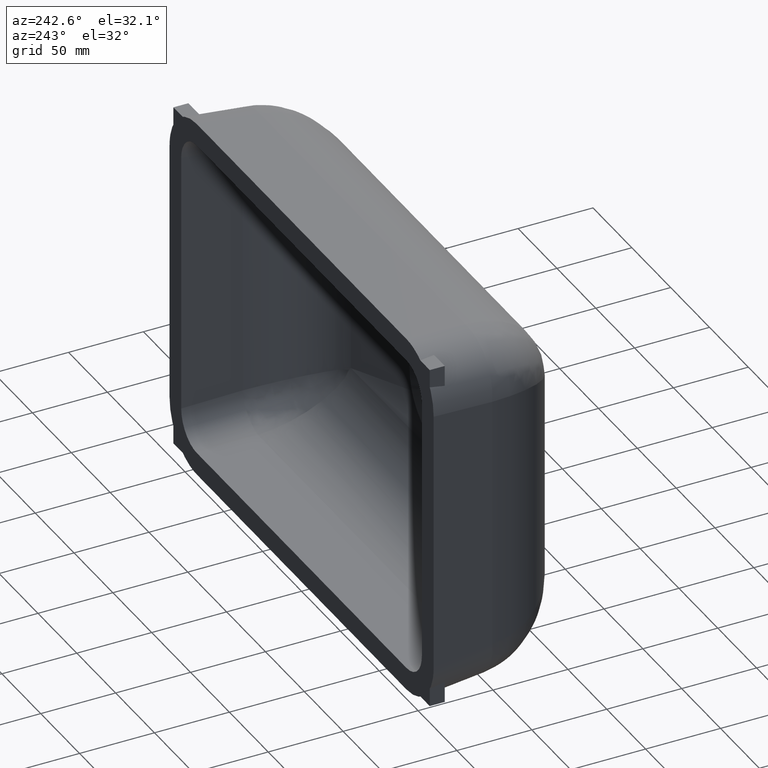
[diagram: clean part render]
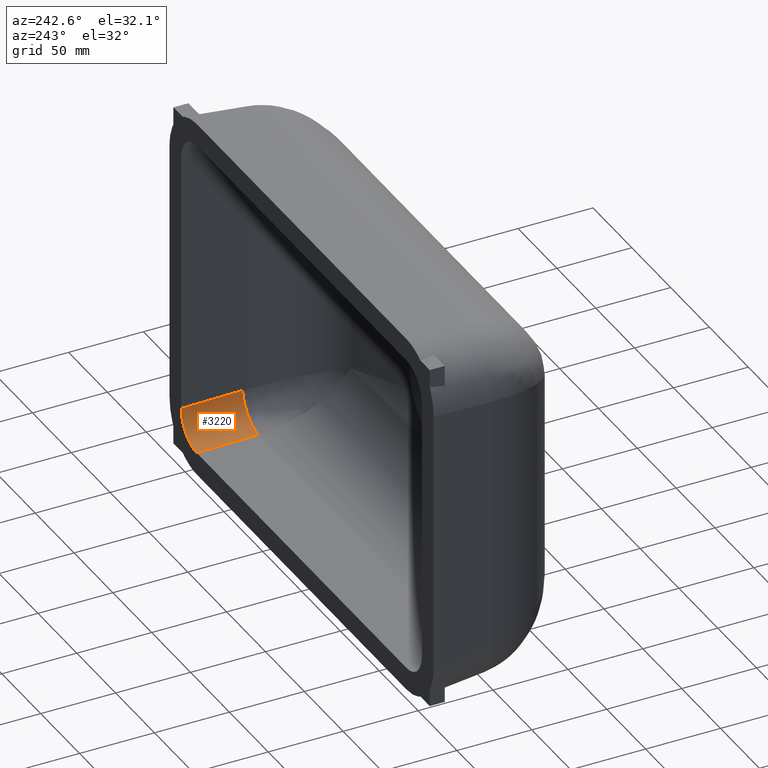
[diagram: same view with one face highlighted and labeled with its STEP entity id]
A machine part, auxiliary view. The second image highlights one B-rep face of the part: STEP entity #3220.
In plain terms, the highlighted cylindrical surface (edge-blend (fillet) strip) has radius 20 mm, axis along (-0.0694, -0.9952, 0.0694).
Its self-contained STEP definition (entity closure, byte-faithful):
#17 = EDGE_CURVE ( 'NONE', #6898, #891, #2847, .T. ) ;
#163 = CARTESIAN_POINT ( 'NONE',  ( 135.0484979832755500, 2.242871439001122500E-015, -107.4999999999999900 ) ) ;
#204 = EDGE_CURVE ( 'NONE', #891, #2222, #7158, .T. ) ;
#212 = CARTESIAN_POINT ( 'NONE',  ( 155.0000000000000300, 0.0000000000000000000, -99.24751135556414300 ) ) ;
#337 = VERTEX_POINT ( 'NONE', #4846 ) ;
#446 = DIRECTION ( 'NONE',  ( -0.06943030862496352200, -0.9951677569578331100, 0.06943030862496500600 ) ) ;
#583 = EDGE_CURVE ( 'NONE', #337, #6898, #6896, .T. ) ;
#891 = VERTEX_POINT ( 'NONE', #5083 ) ;
#1834 = DIRECTION ( 'NONE',  ( 0.0000000000000000000, -0.06959826284903879200, -0.9975751008362208100 ) ) ;
#1917 = CARTESIAN_POINT ( 'NONE',  ( 133.6502995462914200, -18.64887900645910400, -86.15029954629136500 ) ) ;
#1951 = EDGE_LOOP ( 'NONE', ( #3947, #3774, #6816, #3191 ) ) ;
#2222 = VERTEX_POINT ( 'NONE', #6861 ) ;
#2481 = CARTESIAN_POINT ( 'NONE',  ( 133.6502995462914200, -20.04084426343988300, -106.1018015630157700 ) ) ;
#2663 = LINE ( 'NONE', #2481, #4236 ) ;
#2847 = LINE ( 'NONE', #5886, #3377 ) ;
#3115 = CARTESIAN_POINT ( 'NONE',  ( 152.2455874551778300, -39.47991314245189900, -84.79408543845330800 ) ) ;
#3191 = ORIENTED_EDGE ( 'NONE', *, *, #17, .T. ) ;
#3220 = ADVANCED_FACE ( 'NONE', ( #6720 ), #3264, .F. ) ;
#3264 = CYLINDRICAL_SURFACE ( 'NONE', #5231, 19.99999999999999300 ) ;
#3377 = VECTOR ( 'NONE', #5379, 1000.000000000000100 ) ;
#3634 = DIRECTION ( 'NONE',  ( 0.0000000000000000000, -0.06959826284903862500, -0.9975751008362208100 ) ) ;
#3774 = ORIENTED_EDGE ( 'NONE', *, *, #4085, .T. ) ;
#3947 = ORIENTED_EDGE ( 'NONE', *, *, #204, .T. ) ;
#4085 = EDGE_CURVE ( 'NONE', #2222, #337, #2663, .T. ) ;
#4236 = VECTOR ( 'NONE', #6678, 1000.000000000000200 ) ;
#4613 = CARTESIAN_POINT ( 'NONE',  ( 155.0000000000000300, 0.0000000000000000000, -87.54849798327553900 ) ) ;
#4846 = CARTESIAN_POINT ( 'NONE',  ( 132.2940854384533800, -39.47991314245192000, -104.7455874551777100 ) ) ;
#5010 = AXIS2_PLACEMENT_3D ( 'NONE', #6590, #446, #3634 ) ;
#5083 = CARTESIAN_POINT ( 'NONE',  ( 155.0000000000000300, 0.0000000000000000000, -87.54849798327553900 ) ) ;
#5231 = AXIS2_PLACEMENT_3D ( 'NONE', #1917, #6990, #1834 ) ;
#5379 = DIRECTION ( 'NONE',  ( 0.06943030862496452100, 0.9951677569578327700, -0.06943030862496514500 ) ) ;
#5886 = CARTESIAN_POINT ( 'NONE',  ( 155.0961775673008000, 1.378545131310900500, -87.64467555057629500 ) ) ;
#6590 = CARTESIAN_POINT ( 'NONE',  ( 132.2940854384533800, -38.08794788547115200, -84.79408543845329400 ) ) ;
#6678 = DIRECTION ( 'NONE',  ( -0.06943030862496453500, -0.9951677569578327700, 0.06943030862496511700 ) ) ;
#6720 = FACE_OUTER_BOUND ( 'NONE', #1951, .T. ) ;
#6816 = ORIENTED_EDGE ( 'NONE', *, *, #583, .T. ) ;
#6842 = CARTESIAN_POINT ( 'NONE',  ( 146.7475113555642300, 0.0000000000000000000, -107.4999999999999700 ) ) ;
#6861 = CARTESIAN_POINT ( 'NONE',  ( 135.0484979832755500, 2.242871439001122500E-015, -107.4999999999999900 ) ) ;
#6896 = CIRCLE ( 'NONE', #5010, 19.99999999999999300 ) ;
#6898 = VERTEX_POINT ( 'NONE', #3115 ) ;
#6990 = DIRECTION ( 'NONE',  ( -0.06943030862496453500, -0.9951677569578329900, 0.06943030862496514500 ) ) ;
#7158 =( BOUNDED_CURVE ( )  B_SPLINE_CURVE ( 3, ( #4613, #212, #6842, #163 ),
 .UNSPECIFIED., .F., .F. ) 
 B_SPLINE_CURVE_WITH_KNOTS ( ( 4, 4 ),
 ( 2.358616458759532600, 3.924568848420044700 ),
 .UNSPECIFIED. ) 
 CURVE ( )  GEOMETRIC_REPRESENTATION_ITEM ( )  RATIONAL_B_SPLINE_CURVE ( ( 1.000000000000000000, 0.8058781973272434200, 0.8058781973272434200, 1.000000000000000000 ) ) 
 REPRESENTATION_ITEM ( '' )  );